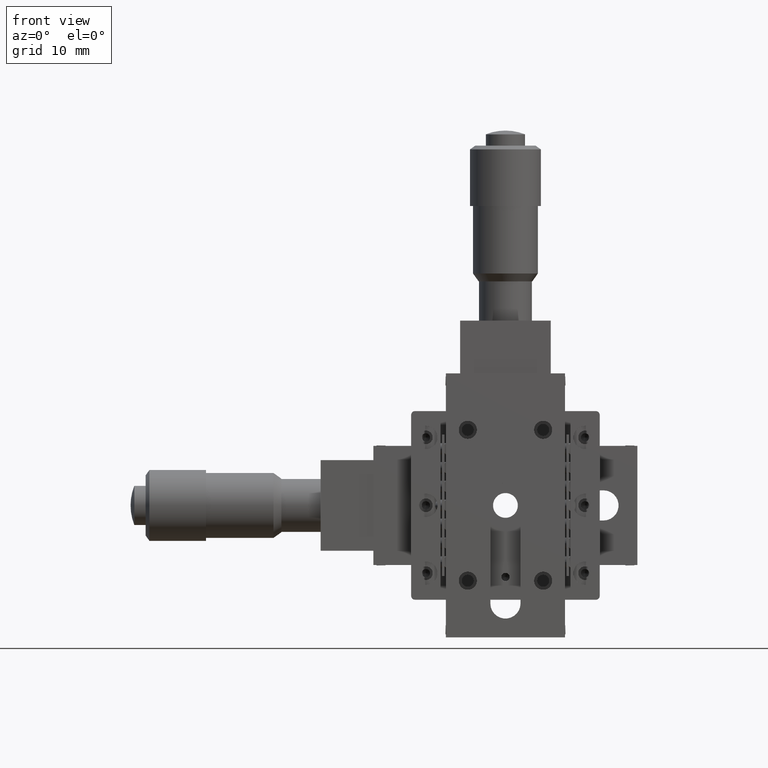
[diagram: clean part render]
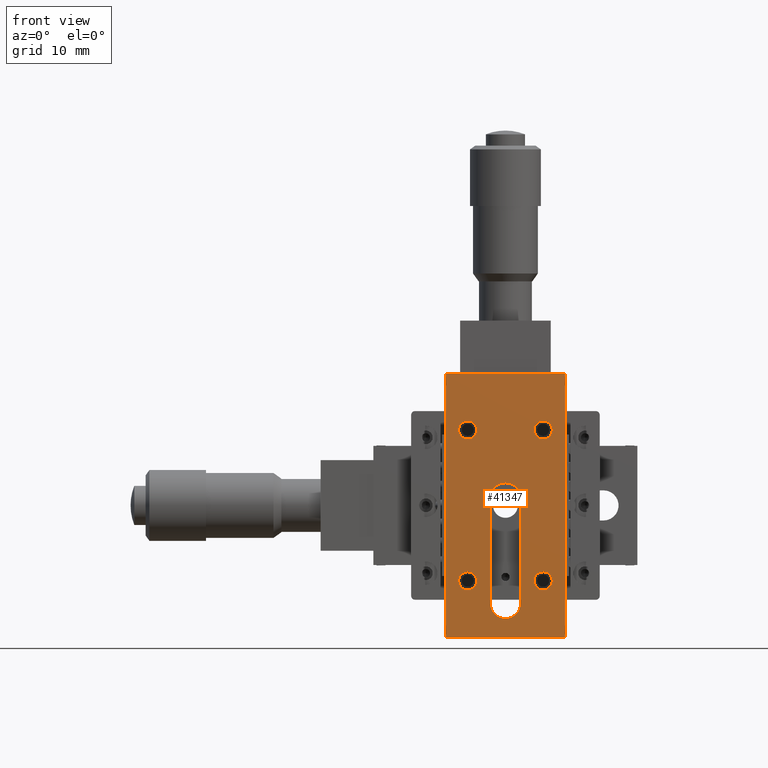
[diagram: same view with one face highlighted and labeled with its STEP entity id]
A machine part, front view. The second image highlights one B-rep face of the part: STEP entity #41347.
In plain terms, the highlighted planar face has unit normal (-0, 1, 0).
Its self-contained STEP definition (entity closure, byte-faithful):
#9 = EDGE_CURVE ( 'NONE', #13848, #45178, #33369, .T. ) ;
#741 = PLANE ( 'NONE',  #12220 ) ;
#924 = EDGE_CURVE ( 'NONE', #37278, #7084, #51231, .T. ) ;
#1696 = DIRECTION ( 'NONE',  ( 0.0000000000000000000, 1.110223024625156500E-015, -1.000000000000000000 ) ) ;
#2279 = CIRCLE ( 'NONE', #42819, 2.000000000000000000 ) ;
#2719 = AXIS2_PLACEMENT_3D ( 'NONE', #35737, #43191, #13896 ) ;
#2784 = ORIENTED_EDGE ( 'NONE', *, *, #48896, .F. ) ;
#2804 = CARTESIAN_POINT ( 'NONE',  ( -4.999999999999998200, -2.373101715136272100E-014, 10.00000000000000200 ) ) ;
#3079 = DIRECTION ( 'NONE',  ( 1.000000000000000000, 0.0000000000000000000, -0.0000000000000000000 ) ) ;
#3406 = DIRECTION ( 'NONE',  ( 0.0000000000000000000, 1.110223024625156500E-015, -1.000000000000000000 ) ) ;
#3450 = ORIENTED_EDGE ( 'NONE', *, *, #41175, .F. ) ;
#4616 = ORIENTED_EDGE ( 'NONE', *, *, #52302, .F. ) ;
#6368 = VECTOR ( 'NONE', #48998, 1000.000000000000000 ) ;
#7022 = DIRECTION ( 'NONE',  ( -0.0000000000000000000, -1.000000000000000000, 1.387778780781445900E-015 ) ) ;
#7067 = ORIENTED_EDGE ( 'NONE', *, *, #47504, .F. ) ;
#7084 = VERTEX_POINT ( 'NONE', #25613 ) ;
#7893 = CARTESIAN_POINT ( 'NONE',  ( -5.000000000000000900, 1.292022044907525800E-014, -11.20000000000000100 ) ) ;
#8462 = VERTEX_POINT ( 'NONE', #57978 ) ;
#8969 = LINE ( 'NONE', #23370, #61643 ) ;
#9632 = ORIENTED_EDGE ( 'NONE', *, *, #41599, .T. ) ;
#10181 = CIRCLE ( 'NONE', #18030, 1.999999999999999600 ) ;
#12220 = AXIS2_PLACEMENT_3D ( 'NONE', #38797, #22637, #66108 ) ;
#12772 = CARTESIAN_POINT ( 'NONE',  ( -7.900000000000000400, 2.331468351712828700E-014, -17.50000000000000000 ) ) ;
#13115 = CARTESIAN_POINT ( 'NONE',  ( 1.999999999999997800, 5.551115123125766100E-017, 0.9999999999999970000 ) ) ;
#13848 = VERTEX_POINT ( 'NONE', #58291 ) ;
#13896 = DIRECTION ( 'NONE',  ( 0.0000000000000000000, 1.110223024625156500E-015, -1.000000000000000000 ) ) ;
#14108 = EDGE_CURVE ( 'NONE', #18620, #23074, #69596, .T. ) ;
#14122 = CARTESIAN_POINT ( 'NONE',  ( 2.000000000000000000, 1.142141936583129800E-014, -13.00000000000000400 ) ) ;
#14945 = AXIS2_PLACEMENT_3D ( 'NONE', #40274, #7022, #40532 ) ;
#15324 = CARTESIAN_POINT ( 'NONE',  ( 7.900000000000000400, 2.331468351712828700E-014, -17.50000000000000000 ) ) ;
#15626 = CIRCLE ( 'NONE', #2719, 1.199999999999999700 ) ;
#15822 = CARTESIAN_POINT ( 'NONE',  ( 4.999999999999995600, -9.922618282587336600E-015, 11.19999999999999900 ) ) ;
#16392 = ORIENTED_EDGE ( 'NONE', *, *, #58638, .F. ) ;
#16698 = FACE_BOUND ( 'NONE', #48311, .T. ) ;
#17168 = VERTEX_POINT ( 'NONE', #13115 ) ;
#17420 = AXIS2_PLACEMENT_3D ( 'NONE', #35428, #50903, #29450 ) ;
#17946 = CIRCLE ( 'NONE', #14945, 1.199999999999999700 ) ;
#18030 = AXIS2_PLACEMENT_3D ( 'NONE', #62815, #19824, #3406 ) ;
#18045 = ORIENTED_EDGE ( 'NONE', *, *, #53297, .F. ) ;
#18386 = CARTESIAN_POINT ( 'NONE',  ( 2.000000000000000000, 1.142141936583129800E-014, -13.00000000000000400 ) ) ;
#18390 = DIRECTION ( 'NONE',  ( 4.379057701015053300E-047, 1.110223024625156700E-015, -1.000000000000000000 ) ) ;
#18620 = VERTEX_POINT ( 'NONE', #66140 ) ;
#18729 = CIRCLE ( 'NONE', #55887, 1.199999999999999700 ) ;
#18766 = VECTOR ( 'NONE', #67767, 1000.000000000000000 ) ;
#18891 = VECTOR ( 'NONE', #59534, 1000.000000000000000 ) ;
#19824 = DIRECTION ( 'NONE',  ( -0.0000000000000000000, -1.000000000000000000, 1.387778780781445900E-015 ) ) ;
#21410 = CARTESIAN_POINT ( 'NONE',  ( -7.900000000000000400, -2.331190795956672400E-014, 17.55000000000000400 ) ) ;
#22225 = DIRECTION ( 'NONE',  ( -0.0000000000000000000, -1.000000000000000000, 1.387778780781445900E-015 ) ) ;
#22281 = ORIENTED_EDGE ( 'NONE', *, *, #14108, .F. ) ;
#22637 = DIRECTION ( 'NONE',  ( -1.093889404311529000E-061, 1.000000000000000000, 1.110223024625156700E-015 ) ) ;
#23049 = CARTESIAN_POINT ( 'NONE',  ( -7.900000000000000400, -2.331468351712828700E-014, 17.50000000000000000 ) ) ;
#23074 = VERTEX_POINT ( 'NONE', #15822 ) ;
#23370 = CARTESIAN_POINT ( 'NONE',  ( 7.900000000000000400, -2.331190795956672400E-014, 17.55000000000000400 ) ) ;
#23703 = CARTESIAN_POINT ( 'NONE',  ( -1.775737858763662000E-015, 5.551115123125768500E-017, 0.9999999999999974500 ) ) ;
#23975 = DIRECTION ( 'NONE',  ( 0.0000000000000000000, 1.110223024625156500E-015, -1.000000000000000000 ) ) ;
#25460 = CIRCLE ( 'NONE', #56084, 1.999999999999999600 ) ;
#25613 = CARTESIAN_POINT ( 'NONE',  ( -5.000000000000007100, 1.325328735646280500E-014, -8.800000000000002500 ) ) ;
#26607 = EDGE_LOOP ( 'NONE', ( #32260, #16392 ) ) ;
#26655 = EDGE_CURVE ( 'NONE', #54792, #57779, #33845, .T. ) ;
#27664 = VERTEX_POINT ( 'NONE', #63943 ) ;
#27977 = CARTESIAN_POINT ( 'NONE',  ( 4.999999999999992900, 2.539635168830045300E-014, -8.800000000000004300 ) ) ;
#28576 = CIRCLE ( 'NONE', #69753, 1.199999999999999700 ) ;
#29040 = EDGE_LOOP ( 'NONE', ( #3450, #47951, #38739, #18045, #38182 ) ) ;
#29240 = DIRECTION ( 'NONE',  ( 0.0000000000000000000, 1.110223024625157500E-015, -1.000000000000000000 ) ) ;
#29351 = FACE_OUTER_BOUND ( 'NONE', #64956, .T. ) ;
#29450 = DIRECTION ( 'NONE',  ( 0.0000000000000000000, 1.110223024625156500E-015, -1.000000000000000000 ) ) ;
#30125 = VERTEX_POINT ( 'NONE', #57237 ) ;
#30214 = CARTESIAN_POINT ( 'NONE',  ( -2.118522938825959400E-030, 2.356448369766894800E-014, -13.00000000000000400 ) ) ;
#32166 = VECTOR ( 'NONE', #3079, 1000.000000000000000 ) ;
#32260 = ORIENTED_EDGE ( 'NONE', *, *, #924, .F. ) ;
#32549 = DIRECTION ( 'NONE',  ( -0.0000000000000000000, -1.000000000000000000, 1.387778780781445900E-015 ) ) ;
#32775 = VERTEX_POINT ( 'NONE', #27977 ) ;
#32829 = FACE_BOUND ( 'NONE', #26607, .T. ) ;
#33183 = ORIENTED_EDGE ( 'NONE', *, *, #37951, .F. ) ;
#33351 = CARTESIAN_POINT ( 'NONE',  ( -5.000000000000000900, 1.158795281952507100E-014, -10.00000000000000200 ) ) ;
#33369 = LINE ( 'NONE', #15324, #18891 ) ;
#33845 = LINE ( 'NONE', #23049, #32166 ) ;
#34442 = EDGE_LOOP ( 'NONE', ( #65147, #33183 ) ) ;
#35428 = CARTESIAN_POINT ( 'NONE',  ( 5.000000000000001800, -1.158795281952507100E-014, 10.00000000000000000 ) ) ;
#35737 = CARTESIAN_POINT ( 'NONE',  ( 5.000000000000001800, -1.158795281952507100E-014, 10.00000000000000000 ) ) ;
#35754 = ORIENTED_EDGE ( 'NONE', *, *, #56052, .F. ) ;
#35845 = DIRECTION ( 'NONE',  ( -0.0000000000000000000, -1.000000000000000000, 1.387778780781445900E-015 ) ) ;
#36715 = CARTESIAN_POINT ( 'NONE',  ( 7.900000000000000400, -2.331468351712828700E-014, 17.50000000000000000 ) ) ;
#37045 = FACE_BOUND ( 'NONE', #34442, .T. ) ;
#37278 = VERTEX_POINT ( 'NONE', #7893 ) ;
#37951 = EDGE_CURVE ( 'NONE', #32775, #45685, #60300, .T. ) ;
#38167 = EDGE_CURVE ( 'NONE', #8462, #27664, #10181, .T. ) ;
#38182 = ORIENTED_EDGE ( 'NONE', *, *, #61554, .F. ) ;
#38739 = ORIENTED_EDGE ( 'NONE', *, *, #65164, .F. ) ;
#38797 = CARTESIAN_POINT ( 'NONE',  ( -7.900000000000000400, -2.331190795956672400E-014, 17.55000000000000400 ) ) ;
#38975 = AXIS2_PLACEMENT_3D ( 'NONE', #54900, #32549, #65572 ) ;
#39220 = LINE ( 'NONE', #14122, #18766 ) ;
#40274 = CARTESIAN_POINT ( 'NONE',  ( -4.999999999999998200, -2.373101715136272100E-014, 10.00000000000000200 ) ) ;
#40532 = DIRECTION ( 'NONE',  ( 0.0000000000000000000, 1.110223024625155200E-015, -1.000000000000000000 ) ) ;
#40970 = CARTESIAN_POINT ( 'NONE',  ( -5.000000000000004400, -2.206568261442498300E-014, 11.20000000000000100 ) ) ;
#41175 = EDGE_CURVE ( 'NONE', #27664, #65888, #45580, .T. ) ;
#41347 = ADVANCED_FACE ( 'NONE', ( #32829, #16698, #55722, #58298, #37045, #29351 ), #741, .F. ) ;
#41599 = EDGE_CURVE ( 'NONE', #54792, #45178, #50632, .T. ) ;
#42010 = ORIENTED_EDGE ( 'NONE', *, *, #9, .F. ) ;
#42777 = VERTEX_POINT ( 'NONE', #18386 ) ;
#42819 = AXIS2_PLACEMENT_3D ( 'NONE', #30214, #51169, #29240 ) ;
#43038 = VECTOR ( 'NONE', #62792, 1000.000000000000000 ) ;
#43191 = DIRECTION ( 'NONE',  ( -0.0000000000000000000, -1.000000000000000000, 1.387778780781445900E-015 ) ) ;
#45178 = VERTEX_POINT ( 'NONE', #12772 ) ;
#45580 = LINE ( 'NONE', #46179, #43038 ) ;
#45685 = VERTEX_POINT ( 'NONE', #63036 ) ;
#45820 = DIRECTION ( 'NONE',  ( -0.0000000000000000000, -1.000000000000000000, 1.387778780781445900E-015 ) ) ;
#46179 = CARTESIAN_POINT ( 'NONE',  ( -2.000000000000000000, 2.356448369766894800E-014, -13.00000000000000400 ) ) ;
#47504 = EDGE_CURVE ( 'NONE', #30125, #55945, #28576, .T. ) ;
#47604 = CARTESIAN_POINT ( 'NONE',  ( -5.000000000000000900, 1.158795281952507100E-014, -10.00000000000000200 ) ) ;
#47611 = EDGE_CURVE ( 'NONE', #45685, #32775, #56704, .T. ) ;
#47752 = DIRECTION ( 'NONE',  ( -0.0000000000000000000, -1.000000000000000000, 1.387778780781445900E-015 ) ) ;
#47951 = ORIENTED_EDGE ( 'NONE', *, *, #38167, .F. ) ;
#48004 = CARTESIAN_POINT ( 'NONE',  ( 4.999999999999999100, 2.373101715136272100E-014, -10.00000000000000400 ) ) ;
#48311 = EDGE_LOOP ( 'NONE', ( #22281, #35754 ) ) ;
#48896 = EDGE_CURVE ( 'NONE', #57779, #13848, #8969, .T. ) ;
#48998 = DIRECTION ( 'NONE',  ( 4.379057701015053300E-047, 1.110223024625156700E-015, -1.000000000000000000 ) ) ;
#50632 = LINE ( 'NONE', #21410, #6368 ) ;
#50903 = DIRECTION ( 'NONE',  ( -0.0000000000000000000, -1.000000000000000000, 1.387778780781445900E-015 ) ) ;
#51169 = DIRECTION ( 'NONE',  ( -0.0000000000000000000, -1.000000000000000000, 1.387778780781445900E-015 ) ) ;
#51231 = CIRCLE ( 'NONE', #62508, 1.199999999999999700 ) ;
#52302 = EDGE_CURVE ( 'NONE', #55945, #30125, #17946, .T. ) ;
#53297 = EDGE_CURVE ( 'NONE', #42777, #17168, #39220, .T. ) ;
#54792 = VERTEX_POINT ( 'NONE', #60006 ) ;
#54831 = ORIENTED_EDGE ( 'NONE', *, *, #26655, .F. ) ;
#54900 = CARTESIAN_POINT ( 'NONE',  ( 4.999999999999999100, 2.373101715136272100E-014, -10.00000000000000400 ) ) ;
#55722 = FACE_BOUND ( 'NONE', #29040, .T. ) ;
#55811 = DIRECTION ( 'NONE',  ( 0.0000000000000000000, 1.110223024625156500E-015, -1.000000000000000000 ) ) ;
#55887 = AXIS2_PLACEMENT_3D ( 'NONE', #47604, #65625, #23975 ) ;
#55945 = VERTEX_POINT ( 'NONE', #40970 ) ;
#56052 = EDGE_CURVE ( 'NONE', #23074, #18620, #15626, .T. ) ;
#56084 = AXIS2_PLACEMENT_3D ( 'NONE', #23703, #45820, #55811 ) ;
#56704 = CIRCLE ( 'NONE', #57489, 1.199999999999999700 ) ;
#57237 = CARTESIAN_POINT ( 'NONE',  ( -4.999999999999998200, -2.239874952181253300E-014, 8.800000000000002500 ) ) ;
#57489 = AXIS2_PLACEMENT_3D ( 'NONE', #48004, #47752, #63409 ) ;
#57779 = VERTEX_POINT ( 'NONE', #36715 ) ;
#57978 = CARTESIAN_POINT ( 'NONE',  ( -1.775737858763662400E-015, 2.831068712794148800E-015, 2.999999999999996900 ) ) ;
#58291 = CARTESIAN_POINT ( 'NONE',  ( 7.900000000000000400, 2.331468351712828700E-014, -17.50000000000000000 ) ) ;
#58298 = FACE_BOUND ( 'NONE', #65370, .T. ) ;
#58638 = EDGE_CURVE ( 'NONE', #7084, #37278, #18729, .T. ) ;
#59534 = DIRECTION ( 'NONE',  ( -1.000000000000000000, 0.0000000000000000000, 0.0000000000000000000 ) ) ;
#60006 = CARTESIAN_POINT ( 'NONE',  ( -7.900000000000000400, -2.331468351712828700E-014, 17.50000000000000000 ) ) ;
#60300 = CIRCLE ( 'NONE', #38975, 1.199999999999999700 ) ;
#61554 = EDGE_CURVE ( 'NONE', #65888, #42777, #2279, .T. ) ;
#61643 = VECTOR ( 'NONE', #18390, 1000.000000000000000 ) ;
#62508 = AXIS2_PLACEMENT_3D ( 'NONE', #33351, #22225, #1696 ) ;
#62792 = DIRECTION ( 'NONE',  ( 9.293161478447181700E-017, 1.110223024625156700E-015, -1.000000000000000000 ) ) ;
#62815 = CARTESIAN_POINT ( 'NONE',  ( -1.775737858763662000E-015, 5.551115123125768500E-017, 0.9999999999999974500 ) ) ;
#62932 = DIRECTION ( 'NONE',  ( 0.0000000000000000000, 1.110223024625155200E-015, -1.000000000000000000 ) ) ;
#63036 = CARTESIAN_POINT ( 'NONE',  ( 4.999999999999999100, 2.506328478091290600E-014, -11.20000000000000300 ) ) ;
#63409 = DIRECTION ( 'NONE',  ( 0.0000000000000000000, 1.110223024625155200E-015, -1.000000000000000000 ) ) ;
#63943 = CARTESIAN_POINT ( 'NONE',  ( -2.000000000000001300, 5.551115123125768500E-017, 0.9999999999999974500 ) ) ;
#64948 = CARTESIAN_POINT ( 'NONE',  ( -2.000000000000000000, 2.356448369766894800E-014, -13.00000000000000400 ) ) ;
#64956 = EDGE_LOOP ( 'NONE', ( #54831, #9632, #42010, #2784 ) ) ;
#65147 = ORIENTED_EDGE ( 'NONE', *, *, #47611, .F. ) ;
#65164 = EDGE_CURVE ( 'NONE', #17168, #8462, #25460, .T. ) ;
#65370 = EDGE_LOOP ( 'NONE', ( #7067, #4616 ) ) ;
#65572 = DIRECTION ( 'NONE',  ( 0.0000000000000000000, 1.110223024625155200E-015, -1.000000000000000000 ) ) ;
#65625 = DIRECTION ( 'NONE',  ( -0.0000000000000000000, -1.000000000000000000, 1.387778780781445900E-015 ) ) ;
#65888 = VERTEX_POINT ( 'NONE', #64948 ) ;
#66108 = DIRECTION ( 'NONE',  ( 4.379057701015053300E-047, 1.110223024625156700E-015, -1.000000000000000000 ) ) ;
#66140 = CARTESIAN_POINT ( 'NONE',  ( 5.000000000000001800, -1.025568518997488400E-014, 8.800000000000000700 ) ) ;
#67767 = DIRECTION ( 'NONE',  ( -1.548860246407863600E-016, -1.110223024625156700E-015, 1.000000000000000000 ) ) ;
#69596 = CIRCLE ( 'NONE', #17420, 1.199999999999999700 ) ;
#69753 = AXIS2_PLACEMENT_3D ( 'NONE', #2804, #35845, #62932 ) ;